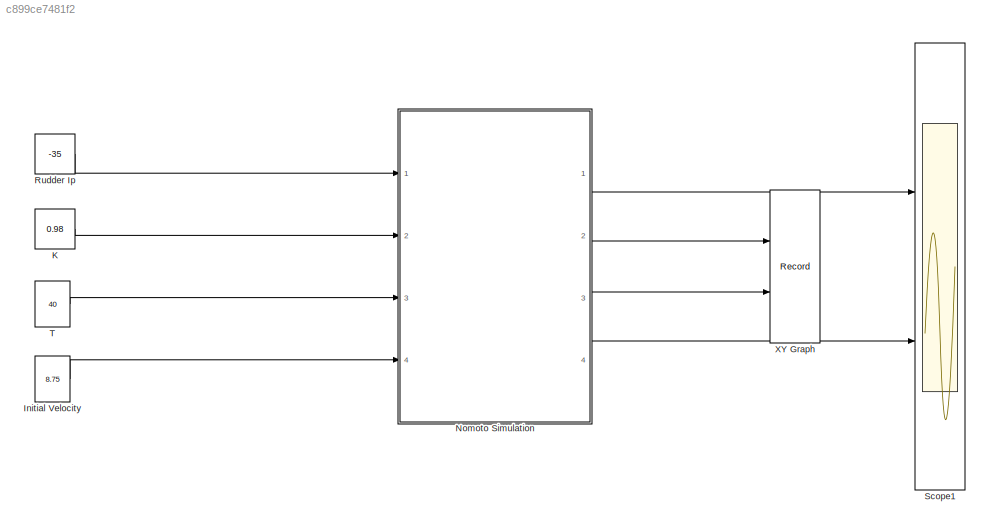
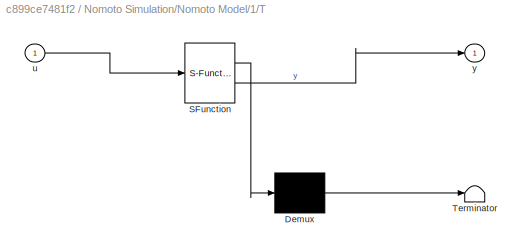
MODEL slx_c899ce7481f2
KIND model
CONFIG AbsTol = auto
CONFIG EnableMultiTasking = off
CONFIG FixedStep = auto
CONFIG MaxStep = auto
CONFIG MinStep = auto
CONFIG RelTol = 1e-3
CONFIG SampleTimeConstraint = Unconstrained
CONFIG SolverName = VariableStepAuto
CONFIG StartTime = 0.0
CONFIG StopTime = 200
BLOCK [Constant] Initial Velocity
  Value = 8.75
BLOCK [Constant] K
  Value = 0.98
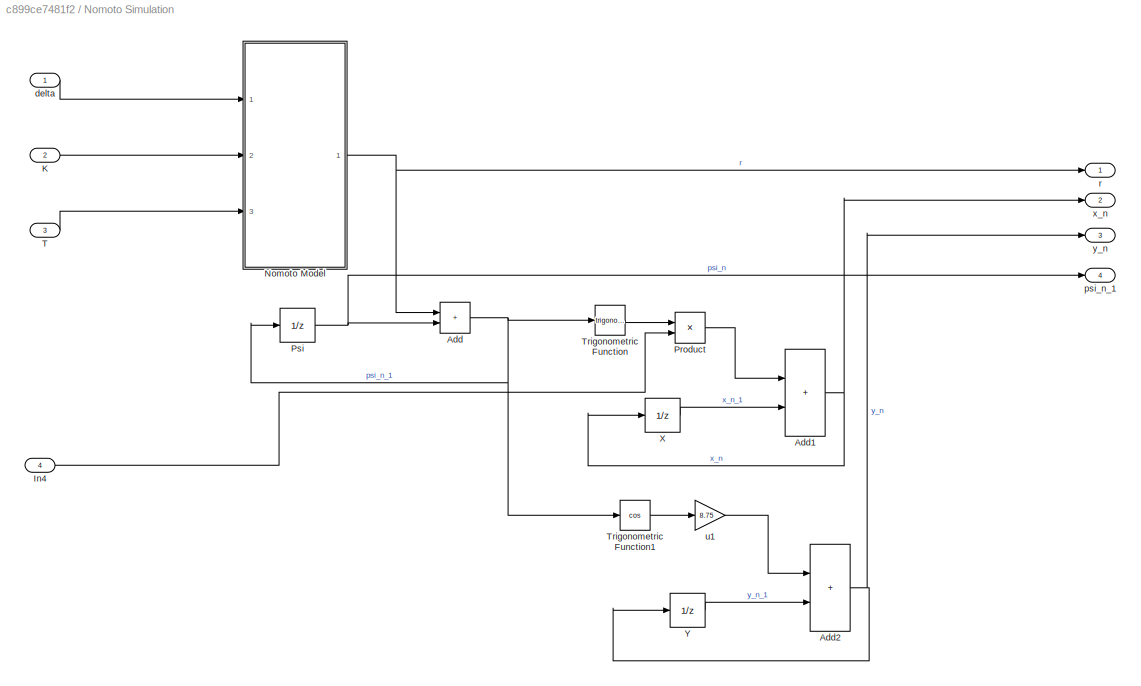
BLOCK [SubSystem] Nomoto Simulation
  Ports = [4, 4]
  RequestExecContextInheritance = off
BLOCK [Sum] Nomoto Simulation/Add
  IconShape = rectangular
  Ports = [2, 1]
BLOCK [Sum] Nomoto Simulation/Add1
  IconShape = rectangular
  Ports = [2, 1]
BLOCK [Sum] Nomoto Simulation/Add2
  IconShape = rectangular
  Ports = [2, 1]
BLOCK [Inport] Nomoto Simulation/In4
  Port = 4
BLOCK [Inport] Nomoto Simulation/K
  Port = 2
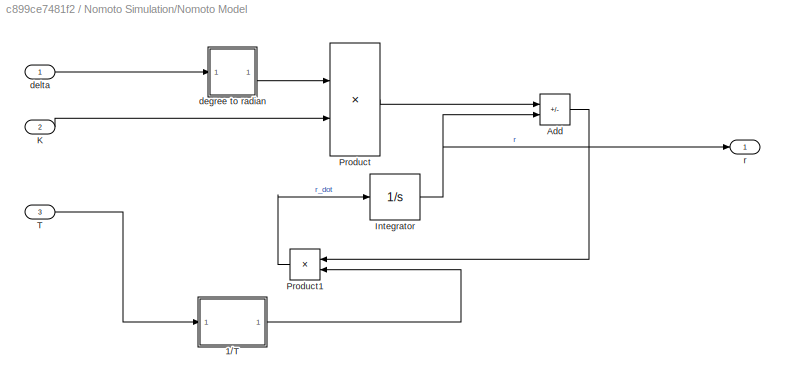
BLOCK [SubSystem] Nomoto Simulation/Nomoto Model
  Ports = [3, 1]
  RequestExecContextInheritance = off
BLOCK [SubSystem] Nomoto Simulation/Nomoto Model/1//T
  ErrorFcn = Stateflow.Translate.translate
  PermitHierarchicalResolution = ExplicitOnly
  Ports = [1, 1]
  RequestExecContextInheritance = off
  SFBlockType = MATLAB Function
  TreatAsAtomicUnit = on
BLOCK [Demux] Nomoto Simulation/Nomoto Model/1//T/ Demux 
  Outputs = 1
  Ports = [1, 1]
BLOCK [S-Function] Nomoto Simulation/Nomoto Model/1//T/ SFunction 
  EnableBusSupport = on
  FunctionName = sf_sfun
  PortCounts = [1 2]
  Ports = [1, 2]
  SFcnIsStateOwnerBlock = off
  SFunctionDeploymentMode = off
  Tag = Stateflow S-Function 1
BLOCK [Terminator] Nomoto Simulation/Nomoto Model/1//T/ Terminator 
BLOCK [Inport] Nomoto Simulation/Nomoto Model/1//T/u
BLOCK [Outport] Nomoto Simulation/Nomoto Model/1//T/y
BLOCK [Sum] Nomoto Simulation/Nomoto Model/Add
  IconShape = rectangular
  Inputs = +-
  Ports = [2, 1]
BLOCK [Integrator] Nomoto Simulation/Nomoto Model/Integrator
  Ports = [1, 1]
BLOCK [Inport] Nomoto Simulation/Nomoto Model/K
  Port = 2
BLOCK [Product] Nomoto Simulation/Nomoto Model/Product
  Ports = [2, 1]
BLOCK [Product] Nomoto Simulation/Nomoto Model/Product1
  Ports = [2, 1]
BLOCK [Inport] Nomoto Simulation/Nomoto Model/T
  Port = 3
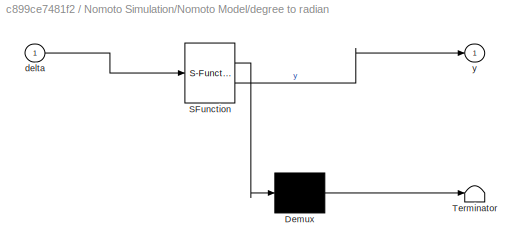
BLOCK [SubSystem] Nomoto Simulation/Nomoto Model/degree to radian
  ErrorFcn = Stateflow.Translate.translate
  PermitHierarchicalResolution = ExplicitOnly
  Ports = [1, 1]
  RequestExecContextInheritance = off
  SFBlockType = MATLAB Function
  TreatAsAtomicUnit = on
BLOCK [Demux] Nomoto Simulation/Nomoto Model/degree to radian/ Demux 
  Outputs = 1
  Ports = [1, 1]
BLOCK [S-Function] Nomoto Simulation/Nomoto Model/degree to radian/ SFunction 
  EnableBusSupport = on
  FunctionName = sf_sfun
  PortCounts = [1 2]
  Ports = [1, 2]
  SFcnIsStateOwnerBlock = off
  SFunctionDeploymentMode = off
  Tag = Stateflow S-Function 2
BLOCK [Terminator] Nomoto Simulation/Nomoto Model/degree to radian/ Terminator 
BLOCK [Inport] Nomoto Simulation/Nomoto Model/degree to radian/delta
BLOCK [Outport] Nomoto Simulation/Nomoto Model/degree to radian/y
BLOCK [Inport] Nomoto Simulation/Nomoto Model/delta
BLOCK [Outport] Nomoto Simulation/Nomoto Model/r
BLOCK [Product] Nomoto Simulation/Product
  Ports = [2, 1]
BLOCK [UnitDelay] Nomoto Simulation/Psi
  HasFrameUpgradeWarning = on
  SampleTime = -1
BLOCK [Inport] Nomoto Simulation/T
  Port = 3
BLOCK [Trigonometry] Nomoto Simulation/Trigonometric Function
  Ports = [1, 1]
BLOCK [Trigonometry] Nomoto Simulation/Trigonometric Function1
  Operator = cos
  Ports = [1, 1]
BLOCK [UnitDelay] Nomoto Simulation/X
  HasFrameUpgradeWarning = on
  SampleTime = -1
BLOCK [UnitDelay] Nomoto Simulation/Y
  HasFrameUpgradeWarning = on
  SampleTime = -1
BLOCK [Inport] Nomoto Simulation/delta
BLOCK [Outport] Nomoto Simulation/psi_n_1
  Port = 4
BLOCK [Outport] Nomoto Simulation/r
BLOCK [Gain] Nomoto Simulation/u1
  Gain = 8.75
BLOCK [Outport] Nomoto Simulation/x_n
  Port = 2
BLOCK [Outport] Nomoto Simulation/y_n
  Port = 3
BLOCK [Constant] Rudder Ip
  Value = -35
BLOCK [Scope] Scope1
  Floating = off
  NumInputPorts = 2
  Ports = [2]
  ScopeSpecificationString = Simulink.scopes.TimeScopeBlockCfg('CurrentConfiguration', extmgr.ConfigurationSet(extmgr.Configuration('Core','General UI',true),extmgr.Configuration('Core','Source UI',true),extmgr.Configuration('Sources','WiredSimulink',true,'DataLoggingVariableName','ScopeData1','SampleTime','0.25'),extmgr.Configuration('Visuals','Time Domain',true,'SerializedDisplays',{struct('MinYLimReal','-0.66894','MaxYLimR...<+2068ch>
BLOCK [Constant] T
  Value = 40
BLOCK [Record] XY Graph
  CompatibilityTag = XY
  FileSettingsInternal = {"entries":[{"content":{"excelSettings":{"content":{},"type":"Streamout.ExcelSettings"}},"type":"Streamout.FileSettingStorage","uuid":"6635f460-40b1-429d-8992-c5b395233bd7"}],"packageUris":["http://schema.mathworks.com/mf0/streamout_blocks/R2020a"],"version":"1.0"}
  Layout = [1 1]
  Ports = [2]
  RecordToWorkspace = on
  SignalsInternal = {"entries":[{"content":{"signals":[{"content":{"blockPath":["model/XY Graph"],"channel":[],"dimensions":[1],"domain":"model/XY Graph","lineColor":"#a2142f","plots":[1],"port":1,"sid":[""],"signalID":43,"signalName":"Nomoto Simulation:2"},"type":"RecordBlkView.Signal","uuid":"2db5812d-c037-4b14-baed-b0e3edf6e0ba"},{"content":{"blockPath":["model/XY Graph"],"channel":[],"dimensions":[1],"domain":"mo...<+371ch>
  VariableName = X_Y_Position
  VisualizationBindings = {"xyplotplugin":{"info":[{"series":[{"bindingParametersList":[{"parameter":"X-Axis","signalID":43,"signalName":"Nomoto Simulation:2"},{"parameter":"Y-Axis","signalID":47,"signalName":"Nomoto Simulation:3"}],"seriesID":59298}],"subplotID":1}]}}
LINE Initial Velocity:1 -> Nomoto Simulation:4
LINE K:1 -> Nomoto Simulation:2
NET Nomoto Simulation/Add1:1 -> Nomoto Simulation/X:1, Nomoto Simulation/x_n:1
NET Nomoto Simulation/Add2:1 -> Nomoto Simulation/Y:1, Nomoto Simulation/y_n:1
NET Nomoto Simulation/Add:1 -> Nomoto Simulation/Psi:1, Nomoto Simulation/Trigonometric Function1:1, Nomoto Simulation/Trigonometric Function:1
LINE Nomoto Simulation/In4:1 -> Nomoto Simulation/Product:2
LINE Nomoto Simulation/K:1 -> Nomoto Simulation/Nomoto Model:2
LINE Nomoto Simulation/Nomoto Model/1//T:1 -> Nomoto Simulation/Nomoto Model/Product1:2
LINE Nomoto Simulation/Nomoto Model/Add:1 -> Nomoto Simulation/Nomoto Model/Product1:1
NET Nomoto Simulation/Nomoto Model/Integrator:1 -> Nomoto Simulation/Nomoto Model/Add:2, Nomoto Simulation/Nomoto Model/r:1
LINE Nomoto Simulation/Nomoto Model/K:1 -> Nomoto Simulation/Nomoto Model/Product:2
LINE Nomoto Simulation/Nomoto Model/Product1:1 -> Nomoto Simulation/Nomoto Model/Integrator:1
LINE Nomoto Simulation/Nomoto Model/Product:1 -> Nomoto Simulation/Nomoto Model/Add:1
LINE Nomoto Simulation/Nomoto Model/T:1 -> Nomoto Simulation/Nomoto Model/1//T:1
LINE Nomoto Simulation/Nomoto Model/degree to radian:1 -> Nomoto Simulation/Nomoto Model/Product:1
LINE Nomoto Simulation/Nomoto Model/delta:1 -> Nomoto Simulation/Nomoto Model/degree to radian:1
NET Nomoto Simulation/Nomoto Model:1 -> Nomoto Simulation/Add:1, Nomoto Simulation/r:1
LINE Nomoto Simulation/Product:1 -> Nomoto Simulation/Add1:1
NET Nomoto Simulation/Psi:1 -> Nomoto Simulation/Add:2, Nomoto Simulation/psi_n_1:1
LINE Nomoto Simulation/T:1 -> Nomoto Simulation/Nomoto Model:3
LINE Nomoto Simulation/Trigonometric Function1:1 -> Nomoto Simulation/u1:1
LINE Nomoto Simulation/Trigonometric Function:1 -> Nomoto Simulation/Product:1
LINE Nomoto Simulation/X:1 -> Nomoto Simulation/Add1:2
LINE Nomoto Simulation/Y:1 -> Nomoto Simulation/Add2:2
LINE Nomoto Simulation/delta:1 -> Nomoto Simulation/Nomoto Model:1
LINE Nomoto Simulation/u1:1 -> Nomoto Simulation/Add2:1
LINE Nomoto Simulation:1 -> Scope1:1
LINE Nomoto Simulation:2 -> XY Graph:1
LINE Nomoto Simulation:3 -> XY Graph:2
LINE Nomoto Simulation:4 -> Scope1:2
LINE Rudder Ip:1 -> Nomoto Simulation:1
LINE T:1 -> Nomoto Simulation:3
note: NET lines group one-source signal fan-out (src -> all destinations, sorted); 1:1 wires keep LINE
CHART Nomoto Simulation/Nomoto Model/degree to radian states=1 transitions=1
  STATE_LABEL 'eML_blk_kernel()'
  STATE_LABEL 'SCRIPT:\nfunction y = fcn(delta)\n\ny = deg2rad(delta);\n'
CHART Nomoto Simulation/Nomoto Model/1//T states=1 transitions=1
  STATE_LABEL 'eML_blk_kernel()'
  STATE_LABEL 'SCRIPT:\nfunction y = fcn(u)\n\ny = 1/u;\n'
CHART  states=0 transitions=0
CHART  states=0 transitions=0
